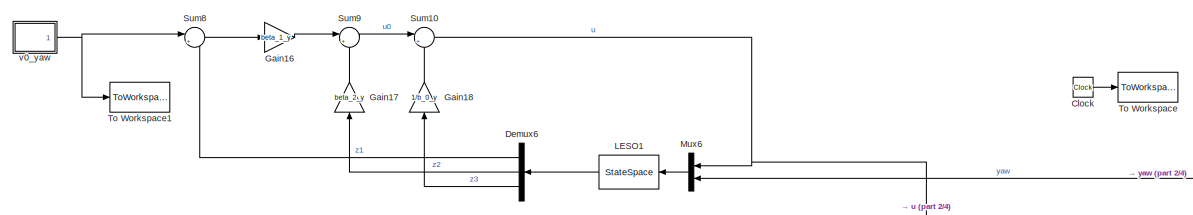
[diagram: root canvas - part 1/4, full width, top band]
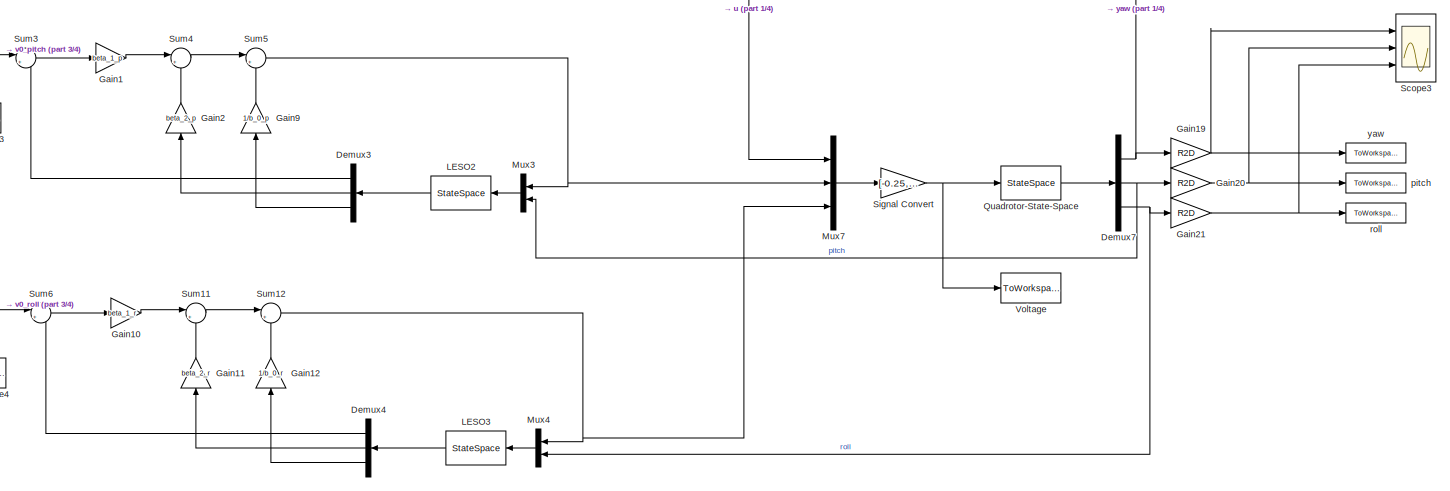
[diagram: root canvas - part 2/4, full width, top band]
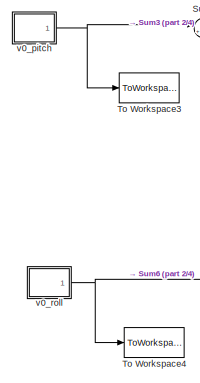
[diagram: root canvas - part 3/4, top left region]
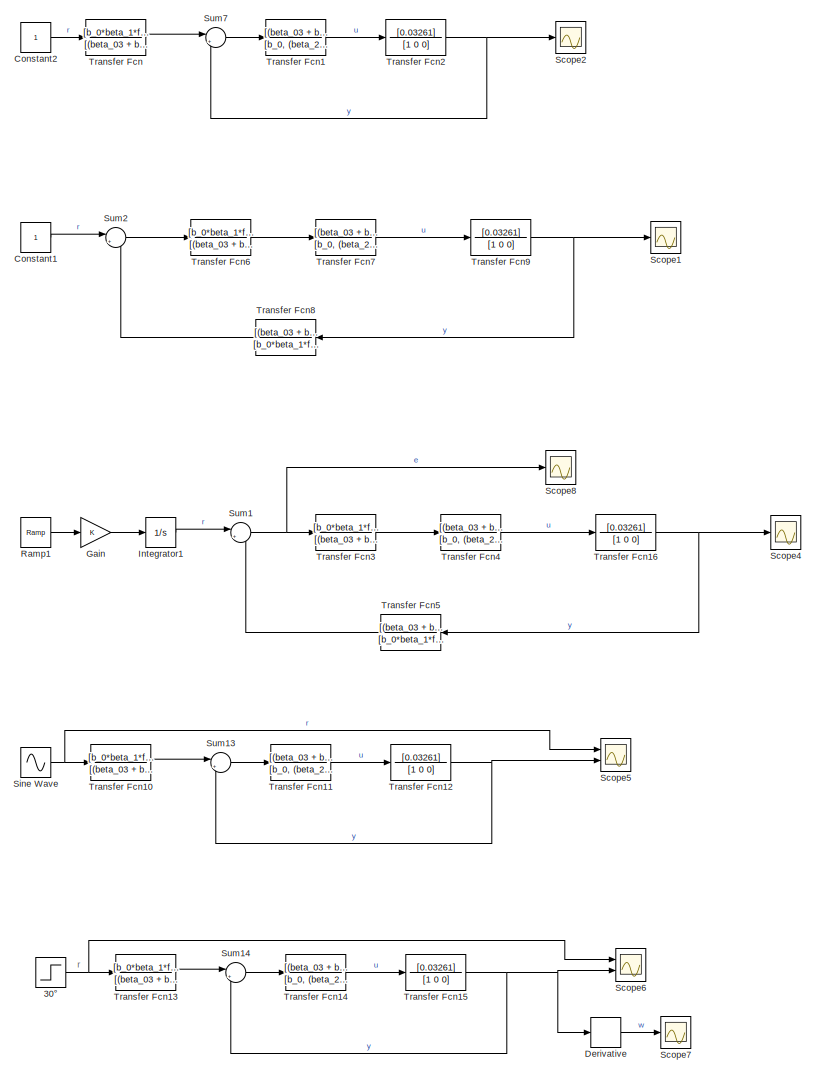
[diagram: root canvas - part 4/4, bottom left region]
MODEL slx_08440fa66056
KIND model
CONFIG AbsTol = auto
CONFIG EnableMultiTasking = off
CONFIG FixedStep = auto
CONFIG MaxStep = auto
CONFIG MinStep = auto
CONFIG RelTol = 1e-3
CONFIG SampleTimeConstraint = Unconstrained
CONFIG Solver = VariableStepAuto
CONFIG SolverName = VariableStepAuto
CONFIG StartTime = 0.0
CONFIG StopTime = 20
BLOCK [Step] 30° 
  After = 30*pi/180
  SampleTime = 0
BLOCK [Clock] Clock
BLOCK [Constant] Constant1
BLOCK [Constant] Constant2
BLOCK [Demux] Demux3
  DisplayOption = bar
  Outputs = 3
  Ports = [1, 3]
BLOCK [Demux] Demux4
  DisplayOption = bar
  Outputs = 3
  Ports = [1, 3]
BLOCK [Demux] Demux6
  DisplayOption = bar
  Outputs = 3
  Ports = [1, 3]
BLOCK [Demux] Demux7
  DisplayOption = bar
  Outputs = 3
  Ports = [1, 3]
BLOCK [Derivative] Derivative
BLOCK [Gain] Gain
  OutDataTypeStr = Inherit: Inherit via internal rule
  ParamDataTypeStr = Inherit: Inherit via internal rule
  SaturateOnIntegerOverflow = off
BLOCK [Gain] Gain1
  Gain = beta_1_p
  OutDataTypeStr = Inherit: Inherit via internal rule
  ParamDataTypeStr = Inherit: Inherit via internal rule
  SaturateOnIntegerOverflow = off
BLOCK [Gain] Gain10
  Gain = beta_1_r
  OutDataTypeStr = Inherit: Inherit via internal rule
  ParamDataTypeStr = Inherit: Inherit via internal rule
  SaturateOnIntegerOverflow = off
BLOCK [Gain] Gain11
  Gain = beta_2_r
  OutDataTypeStr = Inherit: Inherit via internal rule
  ParamDataTypeStr = Inherit: Inherit via internal rule
  SaturateOnIntegerOverflow = off
BLOCK [Gain] Gain12
  Gain = 1/b_0_r
  OutDataTypeStr = Inherit: Inherit via internal rule
  ParamDataTypeStr = Inherit: Inherit via internal rule
  SaturateOnIntegerOverflow = off
BLOCK [Gain] Gain16
  Gain = beta_1_y
  OutDataTypeStr = Inherit: Inherit via internal rule
  ParamDataTypeStr = Inherit: Inherit via internal rule
  SaturateOnIntegerOverflow = off
BLOCK [Gain] Gain17
  Gain = beta_2_y
  OutDataTypeStr = Inherit: Inherit via internal rule
  ParamDataTypeStr = Inherit: Inherit via internal rule
  SaturateOnIntegerOverflow = off
BLOCK [Gain] Gain18
  Gain = 1/b_0_y
  OutDataTypeStr = Inherit: Inherit via internal rule
  ParamDataTypeStr = Inherit: Inherit via internal rule
  SaturateOnIntegerOverflow = off
BLOCK [Gain] Gain19
  Gain = R2D
  OutDataTypeStr = Inherit: Inherit via internal rule
  ParamDataTypeStr = Inherit: Inherit via internal rule
  SaturateOnIntegerOverflow = off
BLOCK [Gain] Gain2
  Gain = beta_2_p
  OutDataTypeStr = Inherit: Inherit via internal rule
  ParamDataTypeStr = Inherit: Inherit via internal rule
  SaturateOnIntegerOverflow = off
BLOCK [Gain] Gain20
  Gain = R2D
  OutDataTypeStr = Inherit: Inherit via internal rule
  ParamDataTypeStr = Inherit: Inherit via internal rule
  SaturateOnIntegerOverflow = off
BLOCK [Gain] Gain21
  Gain = R2D
  OutDataTypeStr = Inherit: Inherit via internal rule
  ParamDataTypeStr = Inherit: Inherit via internal rule
  SaturateOnIntegerOverflow = off
BLOCK [Gain] Gain9
  Gain = 1/b_0_p
  OutDataTypeStr = Inherit: Inherit via internal rule
  ParamDataTypeStr = Inherit: Inherit via internal rule
  SaturateOnIntegerOverflow = off
BLOCK [Integrator] Integrator1
  Ports = [1, 1]
BLOCK [StateSpace] LESO1
  A = [-beta_01_y 1 0;-beta_02_y 0 1;-beta_03_y 0 0]
  B = [0 beta_01_y;b_0_y beta_02_y;0 beta_03_y]
  C = [1 0 0;0 1 0;0 0 1]
  D = [0 0;0 0;0 0]
  Ports = [1, 1]
  X0 = 0
BLOCK [StateSpace] LESO2
  A = [-beta_01_p 1 0;-beta_02_p 0 1;-beta_03_p 0 0]
  B = [0 beta_01_p;b_0_p beta_02_p;0 beta_03_p]
  C = [1 0 0;0 1 0;0 0 1]
  D = [0 0;0 0;0 0]
  Ports = [1, 1]
  X0 = 0
BLOCK [StateSpace] LESO3
  A = [-beta_01_r 1 0;-beta_02_r 0 1;-beta_03_r 0 0]
  B = [0 beta_01_r;b_0_r beta_02_r;0 beta_03_r]
  C = [1 0 0;0 1 0;0 0 1]
  D = [0 0;0 0;0 0]
  Ports = [1, 1]
  X0 = 0
BLOCK [Mux] Mux3
  DisplayOption = bar
  Inputs = 2
  Ports = [2, 1]
BLOCK [Mux] Mux4
  DisplayOption = bar
  Inputs = 2
  Ports = [2, 1]
BLOCK [Mux] Mux6
  DisplayOption = bar
  Inputs = 2
  Ports = [2, 1]
BLOCK [Mux] Mux7
  DisplayOption = bar
  Inputs = 3
  Ports = [3, 1]
BLOCK [StateSpace] Quadrotor-State-Space
  A = [0,0,0,1,0,0;0,0,0,0,1,0;0,0,0,0,0,1;0,0,0,0,0,0;0,0,0,0,0,0;0,0,0,0,0,0]
  B = [0,0,0,0;0,0,0,0;0,0,0,0;k_tc/J_y,k_tc/J_y,k_tn/J_y,k_tn/J_y;l*k_f/J_p,-l*k_f/J_p,0,0;0,0,l*k_f/J_r,-l*k_f/J_r]
  C = [1,0,0,0,0,0;0,1,0,0,0,0;0,0,1,0,0,0]
  D = [0,0,0,0;0,0,0,0;0,0,0,0]
  Ports = [1, 1]
  X0 = [0;0;0;0;0;0]
BLOCK [Reference] Ramp1  REF=simulink/Sources/Ramp
  Ports = [0, 1]
  SourceBlock = simulink/Sources/Ramp
  SourceType = Ramp
BLOCK [Scope] Scope1
  NumInputPorts = 1
  Ports = [1]
  ScopeSpecificationString = Simulink.scopes.TimeScopeBlockCfg('CurrentConfiguration', extmgr.ConfigurationSet(extmgr.Configuration('Core','General UI',true),extmgr.Configuration('Core','Source UI',true),extmgr.Configuration('Sources','WiredSimulink',true),extmgr.Configuration('Visuals','Time Domain',true,'SerializedDisplays',{struct('MinYLimReal','-0.12621','MaxYLimReal','1.13585','YLabelReal','','MinYLimMag','0.00000','MaxY...<+1350ch>
BLOCK [Scope] Scope2
  NumInputPorts = 1
  Ports = [1]
  ScopeSpecificationString = Simulink.scopes.TimeScopeBlockCfg('CurrentConfiguration', extmgr.ConfigurationSet(extmgr.Configuration('Core','General UI',true),extmgr.Configuration('Core','Source UI',true),extmgr.Configuration('Sources','WiredSimulink',true,'DataLoggingVariableName','ScopeData1'),extmgr.Configuration('Visuals','Time Domain',true,'SerializedDisplays',{struct('MinYLimReal','-0.12621','MaxYLimReal','1.13585','YLab...<+1360ch>
BLOCK [Scope] Scope3
  NumInputPorts = 3
  Ports = [3]
  ScopeSpecificationString = Simulink.scopes.TimeScopeBlockCfg('CurrentConfiguration', extmgr.ConfigurationSet(extmgr.Configuration('Core','General UI',true),extmgr.Configuration('Core','Source UI',true),extmgr.Configuration('Sources','WiredSimulink',true,'DataLoggingVariableName','ScopeData2'),extmgr.Configuration('Visuals','Time Domain',true,'SerializedDisplays',{struct('MinYLimReal','-3.7898','MaxYLimReal','3.81874','YLabe...<+2736ch>
BLOCK [Scope] Scope4
  NumInputPorts = 1
  Ports = [1]
  ScopeSpecificationString = Simulink.scopes.TimeScopeBlockCfg('CurrentConfiguration', extmgr.ConfigurationSet(extmgr.Configuration('Core','General UI',true),extmgr.Configuration('Core','Source UI',true),extmgr.Configuration('Sources','WiredSimulink',true,'DataLoggingVariableName','ScopeData1'),extmgr.Configuration('Visuals','Time Domain',true,'SerializedDisplays',{struct('MinYLimReal','-23.52695','MaxYLimReal','211.74255','Y...<+1397ch>
BLOCK [Scope] Scope5
  NumInputPorts = 2
  Ports = [2]
  ScopeSpecificationString = Simulink.scopes.TimeScopeBlockCfg('CurrentConfiguration', extmgr.ConfigurationSet(extmgr.Configuration('Core','General UI',true),extmgr.Configuration('Core','Source UI',true),extmgr.Configuration('Sources','WiredSimulink',true,'DataLoggingVariableName','ScopeData2'),extmgr.Configuration('Visuals','Time Domain',true,'SerializedDisplays',{struct('MinYLimReal','-0.06545','MaxYLimReal','0.06545','YLab...<+1391ch>
BLOCK [Scope] Scope6
  NumInputPorts = 2
  Ports = [2]
  ScopeSpecificationString = Simulink.scopes.TimeScopeBlockCfg('CurrentConfiguration', extmgr.ConfigurationSet(extmgr.Configuration('Core','General UI',true),extmgr.Configuration('Core','Source UI',true),extmgr.Configuration('Sources','WiredSimulink',true,'DataLoggingVariableName','ScopeData3'),extmgr.Configuration('Visuals','Time Domain',true,'SerializedDisplays',{struct('MinYLimReal','-0.06608','MaxYLimReal','0.59473','YLab...<+1969ch>
BLOCK [Scope] Scope7
  NumInputPorts = 1
  Ports = [1]
  ScopeSpecificationString = Simulink.scopes.TimeScopeBlockCfg('CurrentConfiguration', extmgr.ConfigurationSet(extmgr.Configuration('Core','General UI',true),extmgr.Configuration('Core','Source UI',true),extmgr.Configuration('Sources','WiredSimulink',true,'DataLoggingVariableName','ScopeData4'),extmgr.Configuration('Visuals','Time Domain',true,'SerializedDisplays',{struct('MinYLimReal','-0.09522','MaxYLimReal','0.69282','YLab...<+1360ch>
BLOCK [Scope] Scope8
  NumInputPorts = 1
  Ports = [1]
  ScopeSpecificationString = Simulink.scopes.TimeScopeBlockCfg('CurrentConfiguration', extmgr.ConfigurationSet(extmgr.Configuration('Core','General UI',true),extmgr.Configuration('Core','Source UI',true),extmgr.Configuration('Sources','WiredSimulink',true,'DataLoggingVariableName','ScopeData1'),extmgr.Configuration('Visuals','Time Domain',true,'SerializedDisplays',{struct('MinYLimReal','-0.01091','MaxYLimReal','0.08302','YLab...<+1387ch>
BLOCK [Gain] Signal Convert
  Gain = [-0.25,0.5,0;-0.25,-0.5,0;0.25,0,0.5;0.25,0,-0.5]
  Multiplication = Matrix(K*u)
  OutDataTypeStr = Inherit: Inherit via internal rule
  ParamDataTypeStr = Inherit: Inherit via internal rule
  SaturateOnIntegerOverflow = off
BLOCK [Sin] Sine Wave
  Amplitude = 3*pi/180
  Ports = [0, 1]
  SampleTime = 0
BLOCK [Sum] Sum1
  IconShape = round
  InputSameDT = off
  Inputs = |+-
  OutDataTypeStr = Inherit: Inherit via internal rule
  Ports = [2, 1]
  SaturateOnIntegerOverflow = off
BLOCK [Sum] Sum10
  IconShape = round
  InputSameDT = off
  Inputs = |+-
  OutDataTypeStr = Inherit: Inherit via internal rule
  Ports = [2, 1]
  SaturateOnIntegerOverflow = off
BLOCK [Sum] Sum11
  IconShape = round
  InputSameDT = off
  Inputs = |+-
  OutDataTypeStr = Inherit: Inherit via internal rule
  Ports = [2, 1]
  SaturateOnIntegerOverflow = off
BLOCK [Sum] Sum12
  IconShape = round
  InputSameDT = off
  Inputs = |+-
  OutDataTypeStr = Inherit: Inherit via internal rule
  Ports = [2, 1]
  SaturateOnIntegerOverflow = off
BLOCK [Sum] Sum13
  IconShape = round
  InputSameDT = off
  Inputs = |+-
  OutDataTypeStr = Inherit: Inherit via internal rule
  Ports = [2, 1]
  SaturateOnIntegerOverflow = off
BLOCK [Sum] Sum14
  IconShape = round
  InputSameDT = off
  Inputs = |+-
  OutDataTypeStr = Inherit: Inherit via internal rule
  Ports = [2, 1]
  SaturateOnIntegerOverflow = off
BLOCK [Sum] Sum2
  IconShape = round
  InputSameDT = off
  Inputs = |+-
  OutDataTypeStr = Inherit: Inherit via internal rule
  Ports = [2, 1]
  SaturateOnIntegerOverflow = off
BLOCK [Sum] Sum3
  IconShape = round
  InputSameDT = off
  Inputs = |+-
  OutDataTypeStr = Inherit: Inherit via internal rule
  Ports = [2, 1]
  SaturateOnIntegerOverflow = off
BLOCK [Sum] Sum4
  IconShape = round
  InputSameDT = off
  Inputs = |+-
  OutDataTypeStr = Inherit: Inherit via internal rule
  Ports = [2, 1]
  SaturateOnIntegerOverflow = off
BLOCK [Sum] Sum5
  IconShape = round
  InputSameDT = off
  Inputs = |+-
  OutDataTypeStr = Inherit: Inherit via internal rule
  Ports = [2, 1]
  SaturateOnIntegerOverflow = off
BLOCK [Sum] Sum6
  IconShape = round
  InputSameDT = off
  Inputs = |+-
  OutDataTypeStr = Inherit: Inherit via internal rule
  Ports = [2, 1]
  SaturateOnIntegerOverflow = off
BLOCK [Sum] Sum7
  IconShape = round
  InputSameDT = off
  Inputs = |+-
  OutDataTypeStr = Inherit: Inherit via internal rule
  Ports = [2, 1]
  SaturateOnIntegerOverflow = off
BLOCK [Sum] Sum8
  IconShape = round
  InputSameDT = off
  Inputs = |+-
  OutDataTypeStr = Inherit: Inherit via internal rule
  Ports = [2, 1]
  SaturateOnIntegerOverflow = off
BLOCK [Sum] Sum9
  IconShape = round
  InputSameDT = off
  Inputs = |+-
  OutDataTypeStr = Inherit: Inherit via internal rule
  Ports = [2, 1]
  SaturateOnIntegerOverflow = off
BLOCK [ToWorkspace] To Workspace
  FixptAsFi = on
  MaxDataPoints = inf
  Ports = [1]
  SampleTime = -1
  Save2DSignal = 3-D array (concatenate along third dimension)
  VariableName = t
BLOCK [ToWorkspace] To Workspace1
  FixptAsFi = on
  MaxDataPoints = inf
  Ports = [1]
  SampleTime = -1
  Save2DSignal = 3-D array (concatenate along third dimension)
  VariableName = v0_yaw
BLOCK [ToWorkspace] To Workspace3
  FixptAsFi = on
  MaxDataPoints = inf
  Ports = [1]
  SampleTime = -1
  Save2DSignal = 3-D array (concatenate along third dimension)
  VariableName = v0_pitch
BLOCK [ToWorkspace] To Workspace4
  FixptAsFi = on
  MaxDataPoints = inf
  Ports = [1]
  SampleTime = -1
  Save2DSignal = 3-D array (concatenate along third dimension)
  VariableName = v0_roll
BLOCK [TransferFcn] Transfer Fcn
  Denominator = [(beta_03 + b_0*beta_01*beta_1 + b_0*beta_02*beta_2), (beta_03*fp + b_0*beta_1*beta_02 + b_0*beta_2*beta_03 + b_0*beta_01*beta_1*fp + b_0*beta_02*beta_2*fp), (b_0*beta_1*beta_03 + b_0*beta_1*beta_02*fp + b_0*beta_2*beta_03*fp), b_0*beta_1*beta_03*fp]  <repeated x5 — deduplicated; at blocks: Transfer Fcn, Transfer Fcn10, Transfer Fcn13, Transfer Fcn3, Transfer Fcn6>
  Numerator = [b_0*beta_1*fp, b_0*beta_01*beta_1*fp, b_0*beta_1*beta_02*fp, b_0*beta_1*beta_03*fp]
BLOCK [TransferFcn] Transfer Fcn1
  Denominator = [b_0, (beta_2*b_0^2 + beta_01*b_0), (b_0*beta_02 + b_0^2*beta_1 + b_0^2*beta_01*beta_2), 0]
  Numerator = [(beta_03 + b_0*beta_01*beta_1 + b_0*beta_02*beta_2), (b_0*beta_1*beta_02 + b_0*beta_2*beta_03), b_0*beta_1*beta_03]
BLOCK [TransferFcn] Transfer Fcn10
  Numerator = [b_0*beta_1*fp, b_0*beta_01*beta_1*fp, b_0*beta_1*beta_02*fp, b_0*beta_1*beta_03*fp]
BLOCK [TransferFcn] Transfer Fcn11
  Denominator = [b_0, (beta_2*b_0^2 + beta_01*b_0), (b_0*beta_02 + b_0^2*beta_1 + b_0^2*beta_01*beta_2), 0]
  Numerator = [(beta_03 + b_0*beta_01*beta_1 + b_0*beta_02*beta_2), (b_0*beta_1*beta_02 + b_0*beta_2*beta_03), b_0*beta_1*beta_03]
BLOCK [TransferFcn] Transfer Fcn12
  Denominator = [1 0 0]
  Numerator = [0.03261]
BLOCK [TransferFcn] Transfer Fcn13
  Numerator = [b_0*beta_1*fp, b_0*beta_01*beta_1*fp, b_0*beta_1*beta_02*fp, b_0*beta_1*beta_03*fp]
BLOCK [TransferFcn] Transfer Fcn14
  Denominator = [b_0, (beta_2*b_0^2 + beta_01*b_0), (b_0*beta_02 + b_0^2*beta_1 + b_0^2*beta_01*beta_2), 0]
  Numerator = [(beta_03 + b_0*beta_01*beta_1 + b_0*beta_02*beta_2), (b_0*beta_1*beta_02 + b_0*beta_2*beta_03), b_0*beta_1*beta_03]
BLOCK [TransferFcn] Transfer Fcn15
  Denominator = [1 0 0]
  Numerator = [0.03261]
BLOCK [TransferFcn] Transfer Fcn16
  Denominator = [1 0 0]
  Numerator = [0.03261]
BLOCK [TransferFcn] Transfer Fcn2
  Denominator = [1 0 0]
  Numerator = [0.03261]
BLOCK [TransferFcn] Transfer Fcn3
  Numerator = [b_0*beta_1*fp, b_0*beta_01*beta_1*fp, b_0*beta_1*beta_02*fp, b_0*beta_1*beta_03*fp]
BLOCK [TransferFcn] Transfer Fcn4
  Denominator = [b_0, (beta_2*b_0^2 + beta_01*b_0), (b_0*beta_02 + b_0^2*beta_1 + b_0^2*beta_01*beta_2), 0]
  Numerator = [(beta_03 + b_0*beta_01*beta_1 + b_0*beta_02*beta_2), (b_0*beta_1*beta_02 + b_0*beta_2*beta_03), b_0*beta_1*beta_03]
BLOCK [TransferFcn] Transfer Fcn5
  Denominator = [b_0*beta_1*fp, b_0*beta_01*beta_1*fp, b_0*beta_1*beta_02*fp, b_0*beta_1*beta_03*fp]
  Numerator = [(beta_03 + b_0*beta_01*beta_1 + b_0*beta_02*beta_2), (beta_03*fp + b_0*beta_1*beta_02 + b_0*beta_2*beta_03 + b_0*beta_01*beta_1*fp + b_0*beta_02*beta_2*fp), (b_0*beta_1*beta_03 + b_0*beta_1*beta_02*fp + b_0*beta_2*beta_03*fp), b_0*beta_1*beta_03*fp]
BLOCK [TransferFcn] Transfer Fcn6
  Numerator = [b_0*beta_1*fp, b_0*beta_01*beta_1*fp, b_0*beta_1*beta_02*fp, b_0*beta_1*beta_03*fp]
BLOCK [TransferFcn] Transfer Fcn7
  Denominator = [b_0, (beta_2*b_0^2 + beta_01*b_0), (b_0*beta_02 + b_0^2*beta_1 + b_0^2*beta_01*beta_2), 0]
  Numerator = [(beta_03 + b_0*beta_01*beta_1 + b_0*beta_02*beta_2), (b_0*beta_1*beta_02 + b_0*beta_2*beta_03), b_0*beta_1*beta_03]
BLOCK [TransferFcn] Transfer Fcn8
  Denominator = [b_0*beta_1*fp, b_0*beta_01*beta_1*fp, b_0*beta_1*beta_02*fp, b_0*beta_1*beta_03*fp]
  Numerator = [(beta_03 + b_0*beta_01*beta_1 + b_0*beta_02*beta_2), (beta_03*fp + b_0*beta_1*beta_02 + b_0*beta_2*beta_03 + b_0*beta_01*beta_1*fp + b_0*beta_02*beta_2*fp), (b_0*beta_1*beta_03 + b_0*beta_1*beta_02*fp + b_0*beta_2*beta_03*fp), b_0*beta_1*beta_03*fp]
BLOCK [TransferFcn] Transfer Fcn9
  Denominator = [1 0 0]
  Numerator = [0.03261]
BLOCK [ToWorkspace] Voltage
  FixptAsFi = on
  MaxDataPoints = inf
  Ports = [1]
  SampleTime = -1
  Save2DSignal = 3-D array (concatenate along third dimension)
  VariableName = v
BLOCK [ToWorkspace] pitch
  FixptAsFi = on
  MaxDataPoints = inf
  Ports = [1]
  SampleTime = -1
  Save2DSignal = 3-D array (concatenate along third dimension)
  VariableName = pitch
BLOCK [ToWorkspace] roll
  FixptAsFi = on
  MaxDataPoints = inf
  Ports = [1]
  SampleTime = -1
  Save2DSignal = 3-D array (concatenate along third dimension)
  VariableName = roll
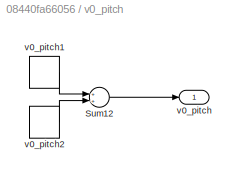
BLOCK [SubSystem] v0_pitch
  Ports = [0, 1]
  RequestExecContextInheritance = off
  Variant = off
BLOCK [Sum] v0_pitch/Sum12
  IconShape = round
  InputSameDT = off
  OutDataTypeStr = Inherit: Inherit via internal rule
  Ports = [2, 1]
  SaturateOnIntegerOverflow = off
BLOCK [Outport] v0_pitch/v0_pitch
  IconDisplay = Port number
BLOCK [DiscretePulseGenerator] v0_pitch/v0_pitch1
  Amplitude = 3*pi/180
  Period = 10
  PhaseDelay = 5
  Ports = [0, 1]
  PulseType = Time based
  PulseWidth = 50
BLOCK [DiscretePulseGenerator] v0_pitch/v0_pitch2
  Amplitude = -3*pi/180
  Period = 10
  Ports = [0, 1]
  PulseType = Time based
  PulseWidth = 50
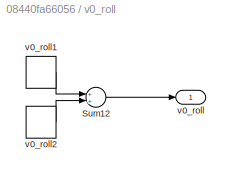
BLOCK [SubSystem] v0_roll
  Ports = [0, 1]
  RequestExecContextInheritance = off
  Variant = off
BLOCK [Sum] v0_roll/Sum12
  IconShape = round
  InputSameDT = off
  OutDataTypeStr = Inherit: Inherit via internal rule
  Ports = [2, 1]
  SaturateOnIntegerOverflow = off
BLOCK [Outport] v0_roll/v0_roll
  IconDisplay = Port number
BLOCK [DiscretePulseGenerator] v0_roll/v0_roll1
  Amplitude = 3*pi/180
  Period = 10
  PhaseDelay = 5
  Ports = [0, 1]
  PulseType = Time based
  PulseWidth = 50
BLOCK [DiscretePulseGenerator] v0_roll/v0_roll2
  Amplitude = -3*pi/180
  Period = 10
  Ports = [0, 1]
  PulseType = Time based
  PulseWidth = 50
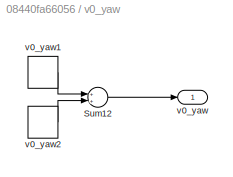
BLOCK [SubSystem] v0_yaw
  Ports = [0, 1]
  RequestExecContextInheritance = off
  Variant = off
BLOCK [Sum] v0_yaw/Sum12
  IconShape = round
  InputSameDT = off
  OutDataTypeStr = Inherit: Inherit via internal rule
  Ports = [2, 1]
  SaturateOnIntegerOverflow = off
BLOCK [Outport] v0_yaw/v0_yaw
  IconDisplay = Port number
BLOCK [DiscretePulseGenerator] v0_yaw/v0_yaw1
  Amplitude = 3*pi/180
  Period = 10
  PhaseDelay = 5
  Ports = [0, 1]
  PulseType = Time based
  PulseWidth = 50
BLOCK [DiscretePulseGenerator] v0_yaw/v0_yaw2
  Amplitude = -3*pi/180
  Period = 10
  Ports = [0, 1]
  PulseType = Time based
  PulseWidth = 50
BLOCK [ToWorkspace] yaw
  FixptAsFi = on
  MaxDataPoints = inf
  Ports = [1]
  SampleTime = -1
  Save2DSignal = 3-D array (concatenate along third dimension)
  VariableName = yaw
ANNOTATION (root): r
NET 30° :1 -> Scope6:1, Transfer Fcn13:1
LINE Clock:1 -> To Workspace:1
LINE Constant1:1 -> Sum2:1
LINE Constant2:1 -> Transfer Fcn:1
LINE Demux3:1 -> Sum3:2
LINE Demux3:2 -> Gain2:1
LINE Demux3:3 -> Gain9:1
LINE Demux4:1 -> Sum6:2
LINE Demux4:2 -> Gain11:1
LINE Demux4:3 -> Gain12:1
LINE Demux6:1 -> Sum8:2
LINE Demux6:2 -> Gain17:1
LINE Demux6:3 -> Gain18:1
NET Demux7:1 -> Gain19:1, Mux6:2
NET Demux7:2 -> Gain20:1, Mux3:2
NET Demux7:3 -> Gain21:1, Mux4:2
LINE Derivative:1 -> Scope7:1
LINE Gain10:1 -> Sum11:1
LINE Gain11:1 -> Sum11:2
LINE Gain12:1 -> Sum12:2
LINE Gain16:1 -> Sum9:1
LINE Gain17:1 -> Sum9:2
LINE Gain18:1 -> Sum10:2
NET Gain19:1 -> Scope3:1, yaw:1
LINE Gain1:1 -> Sum4:1
NET Gain20:1 -> Scope3:2, pitch:1
NET Gain21:1 -> Scope3:3, roll:1
LINE Gain2:1 -> Sum4:2
LINE Gain9:1 -> Sum5:2
LINE Gain:1 -> Integrator1:1
LINE Integrator1:1 -> Sum1:1
LINE LESO1:1 -> Demux6:1
LINE LESO2:1 -> Demux3:1
LINE LESO3:1 -> Demux4:1
LINE Mux3:1 -> LESO2:1
LINE Mux4:1 -> LESO3:1
LINE Mux6:1 -> LESO1:1
LINE Mux7:1 -> Signal Convert:1
LINE Quadrotor-State-Space:1 -> Demux7:1
LINE Ramp1:1 -> Gain:1
NET Signal Convert:1 -> Quadrotor-State-Space:1, Voltage:1
NET Sine Wave:1 -> Scope5:1, Transfer Fcn10:1
NET Sum10:1 -> Mux6:1, Mux7:1
LINE Sum11:1 -> Sum12:1
NET Sum12:1 -> Mux4:1, Mux7:3
LINE Sum13:1 -> Transfer Fcn11:1
LINE Sum14:1 -> Transfer Fcn14:1
NET Sum1:1 -> Scope8:1, Transfer Fcn3:1
LINE Sum2:1 -> Transfer Fcn6:1
LINE Sum3:1 -> Gain1:1
LINE Sum4:1 -> Sum5:1
NET Sum5:1 -> Mux3:1, Mux7:2
LINE Sum6:1 -> Gain10:1
LINE Sum7:1 -> Transfer Fcn1:1
LINE Sum8:1 -> Gain16:1
LINE Sum9:1 -> Sum10:1
LINE Transfer Fcn10:1 -> Sum13:1
LINE Transfer Fcn11:1 -> Transfer Fcn12:1
NET Transfer Fcn12:1 -> Scope5:2, Sum13:2
LINE Transfer Fcn13:1 -> Sum14:1
LINE Transfer Fcn14:1 -> Transfer Fcn15:1
NET Transfer Fcn15:1 -> Derivative:1, Scope6:2, Sum14:2
NET Transfer Fcn16:1 -> Scope4:1, Transfer Fcn5:1
LINE Transfer Fcn1:1 -> Transfer Fcn2:1
NET Transfer Fcn2:1 -> Scope2:1, Sum7:2
LINE Transfer Fcn3:1 -> Transfer Fcn4:1
LINE Transfer Fcn4:1 -> Transfer Fcn16:1
LINE Transfer Fcn5:1 -> Sum1:2
LINE Transfer Fcn6:1 -> Transfer Fcn7:1
LINE Transfer Fcn7:1 -> Transfer Fcn9:1
LINE Transfer Fcn8:1 -> Sum2:2
NET Transfer Fcn9:1 -> Scope1:1, Transfer Fcn8:1
LINE Transfer Fcn:1 -> Sum7:1
LINE v0_pitch/Sum12:1 -> v0_pitch/v0_pitch:1
LINE v0_pitch/v0_pitch1:1 -> v0_pitch/Sum12:1
LINE v0_pitch/v0_pitch2:1 -> v0_pitch/Sum12:2
NET v0_pitch:1 -> Sum3:1, To Workspace3:1
LINE v0_roll/Sum12:1 -> v0_roll/v0_roll:1
LINE v0_roll/v0_roll1:1 -> v0_roll/Sum12:1
LINE v0_roll/v0_roll2:1 -> v0_roll/Sum12:2
NET v0_roll:1 -> Sum6:1, To Workspace4:1
LINE v0_yaw/Sum12:1 -> v0_yaw/v0_yaw:1
LINE v0_yaw/v0_yaw1:1 -> v0_yaw/Sum12:1
LINE v0_yaw/v0_yaw2:1 -> v0_yaw/Sum12:2
NET v0_yaw:1 -> Sum8:1, To Workspace1:1
note: NET lines group one-source signal fan-out (src -> all destinations, sorted); 1:1 wires keep LINE
